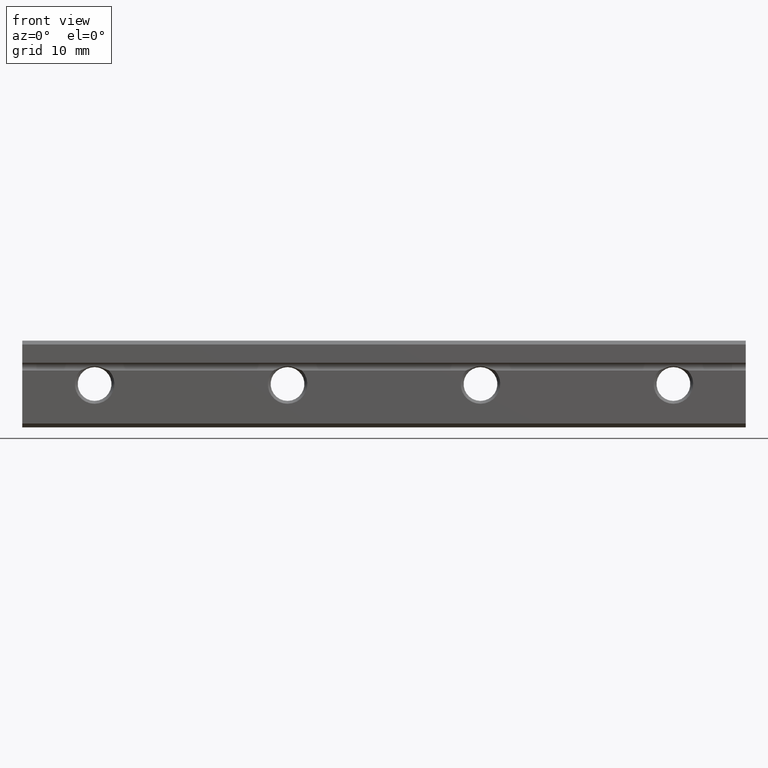
[diagram: clean part render]
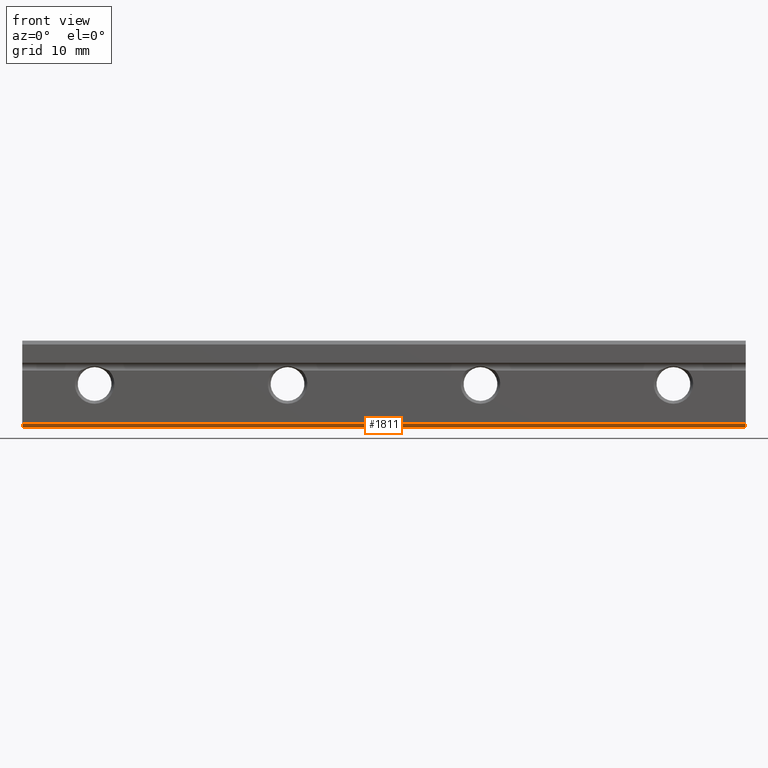
[diagram: same view with one face highlighted and labeled with its STEP entity id]
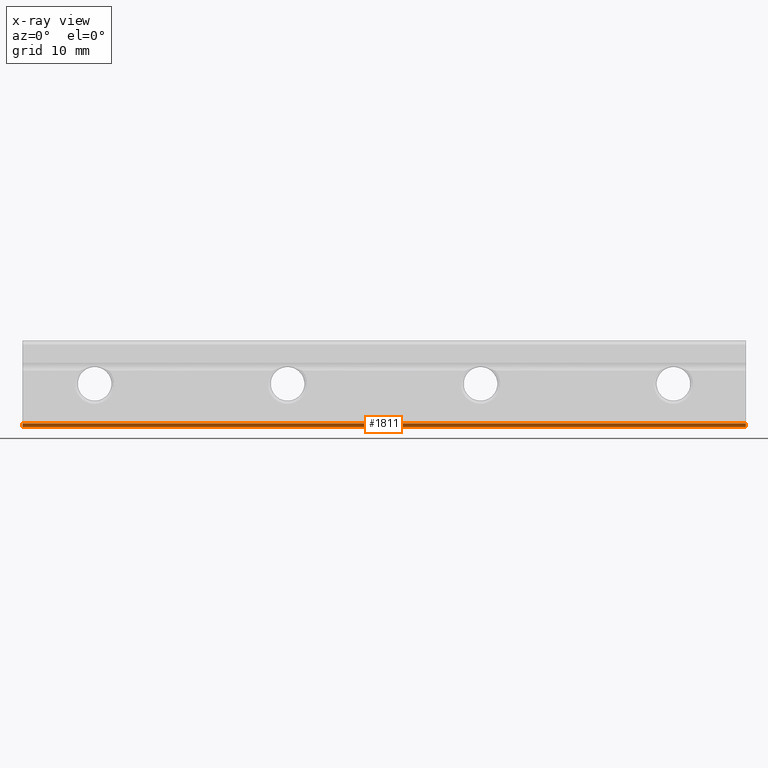
[diagram: x-ray of the same camera — body ghosted, the highlighted face saturated]
A machine part, front view. The second image highlights one B-rep face of the part: STEP entity #1811.
The next image is the same camera in x-ray: the body ghosted, the highlighted face saturated — about 0% of this face is hidden behind the body in this view.
In plain terms, the highlighted planar face has unit normal (0, 0.7071, 0.7071).
Its self-contained STEP definition (entity closure, byte-faithful):
#951 = DIRECTION ( 'NONE',  ( 0.0000000000000000000, -0.7071067811865477900, 0.7071067811865473500 ) ) ;
#952 = VECTOR ( 'NONE', #951, 1000.000000000000000 ) ;
#953 = CARTESIAN_POINT ( 'NONE',  ( 0.0000000000000000000, 1.357833116777396200E-015, -4.100000000000000500 ) ) ;
#954 = LINE ( 'NONE', #953, #952 ) ;
#959 = CARTESIAN_POINT ( 'NONE',  ( 0.0000000000000000000, 0.4000000000000016300, -4.500000000000000900 ) ) ;
#1057 = CARTESIAN_POINT ( 'NONE',  ( -75.00000000000000000, 0.4000000000000016300, -4.500000000000000900 ) ) ;
#1059 = DIRECTION ( 'NONE',  ( 0.0000000000000000000, -0.7071067811865477900, 0.7071067811865473500 ) ) ;
#1060 = VECTOR ( 'NONE', #1059, 1000.000000000000000 ) ;
#1061 = CARTESIAN_POINT ( 'NONE',  ( -75.00000000000000000, 1.357833116777396200E-015, -4.100000000000000500 ) ) ;
#1062 = LINE ( 'NONE', #1061, #1060 ) ;
#1077 = DIRECTION ( 'NONE',  ( 0.0000000000000000000, -0.7071067811865477900, 0.7071067811865473500 ) ) ;
#1078 = DIRECTION ( 'NONE',  ( 0.0000000000000000000, 0.7071067811865473500, 0.7071067811865477900 ) ) ;
#1079 = CARTESIAN_POINT ( 'NONE',  ( -75.00000000000000000, 1.357833116777396200E-015, -4.100000000000000500 ) ) ;
#1080 = AXIS2_PLACEMENT_3D ( 'NONE', #1079, #1078, #1077 ) ;
#1081 = PLANE ( 'NONE',  #1080 ) ;
#1082 = FACE_OUTER_BOUND ( 'NONE', #1814, .T. ) ;
#1123 = DIRECTION ( 'NONE',  ( 1.000000000000000000, 0.0000000000000000000, 0.0000000000000000000 ) ) ;
#1124 = VECTOR ( 'NONE', #1123, 1000.000000000000000 ) ;
#1125 = CARTESIAN_POINT ( 'NONE',  ( -75.00000000000000000, 0.4000000000000016300, -4.500000000000000900 ) ) ;
#1126 = LINE ( 'NONE', #1125, #1124 ) ;
#1253 = CARTESIAN_POINT ( 'NONE',  ( 0.0000000000000000000, 1.357833116777396200E-015, -4.100000000000000500 ) ) ;
#1254 = CARTESIAN_POINT ( 'NONE',  ( -75.00000000000000000, 1.357833116777396200E-015, -4.100000000000000500 ) ) ;
#1298 = CARTESIAN_POINT ( 'NONE',  ( -75.00000000000000000, 1.357833116777396200E-015, -4.100000000000000500 ) ) ;
#1299 = LINE ( 'NONE', #1298, #1340 ) ;
#1339 = DIRECTION ( 'NONE',  ( 1.000000000000000000, 0.0000000000000000000, 0.0000000000000000000 ) ) ;
#1340 = VECTOR ( 'NONE', #1339, 1000.000000000000000 ) ;
#1701 = VERTEX_POINT ( 'NONE', #959 ) ;
#1706 = EDGE_CURVE ( 'NONE', #1701, #1948, #954, .T. ) ;
#1772 = EDGE_CURVE ( 'NONE', #1779, #1945, #1062, .T. ) ;
#1779 = VERTEX_POINT ( 'NONE', #1057 ) ;
#1806 = ORIENTED_EDGE ( 'NONE', *, *, #1706, .T. ) ;
#1811 = ADVANCED_FACE ( 'NONE', ( #1082 ), #1081, .F. ) ;
#1814 = EDGE_LOOP ( 'NONE', ( #1806, #1965, #1833, #1834 ) ) ;
#1824 = EDGE_CURVE ( 'NONE', #1779, #1701, #1126, .T. ) ;
#1833 = ORIENTED_EDGE ( 'NONE', *, *, #1772, .F. ) ;
#1834 = ORIENTED_EDGE ( 'NONE', *, *, #1824, .T. ) ;
#1945 = VERTEX_POINT ( 'NONE', #1254 ) ;
#1948 = VERTEX_POINT ( 'NONE', #1253 ) ;
#1965 = ORIENTED_EDGE ( 'NONE', *, *, #1991, .F. ) ;
#1991 = EDGE_CURVE ( 'NONE', #1945, #1948, #1299, .T. ) ;